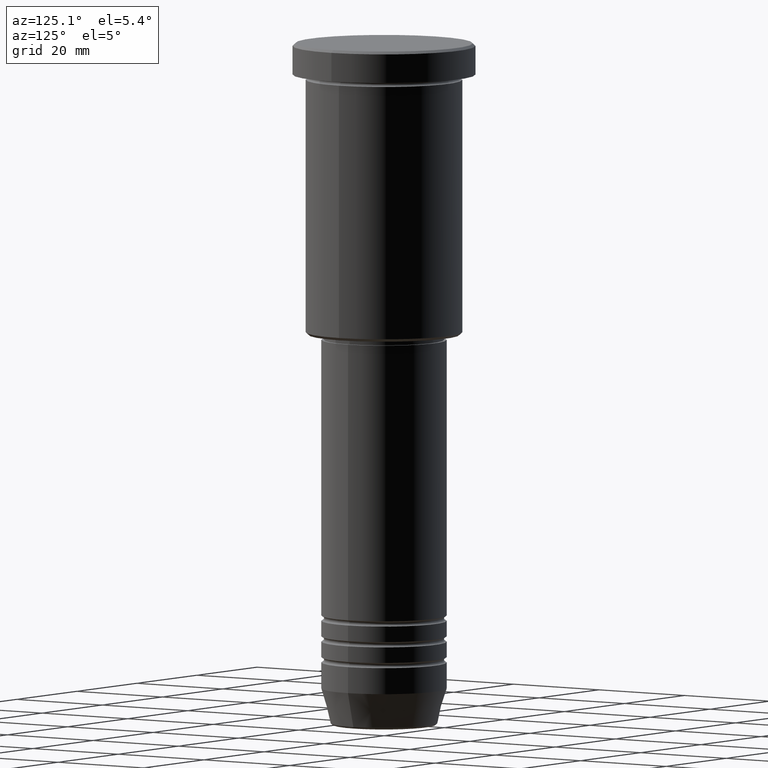
[diagram: clean part render]
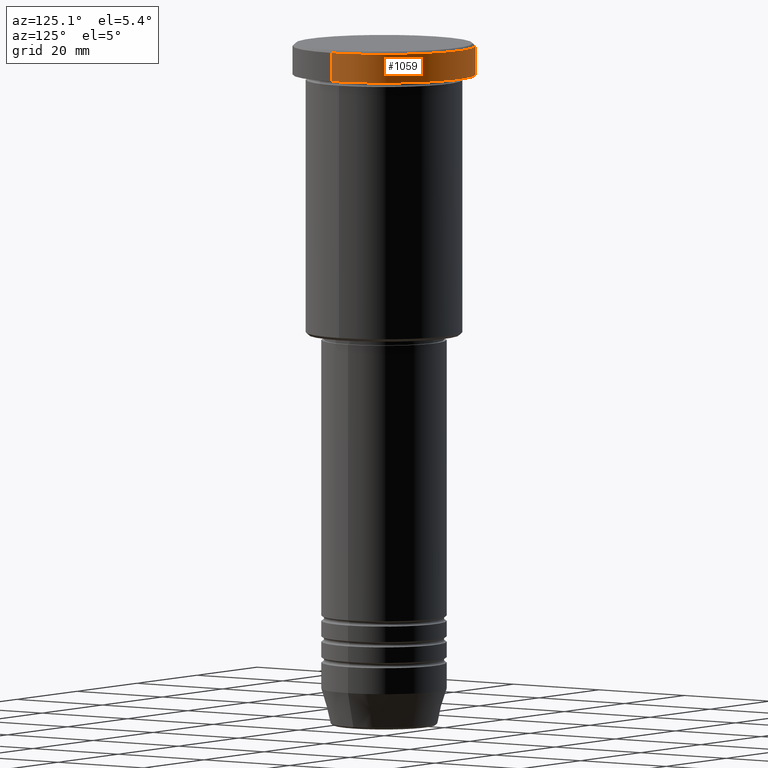
[diagram: same view with one face highlighted and labeled with its STEP entity id]
A machine part, auxiliary view. The second image highlights one B-rep face of the part: STEP entity #1059.
In plain terms, the highlighted cylindrical surface (partial cylindrical patch) has radius 17.5 mm, axis along (-0, -0, 1).
Its self-contained STEP definition (entity closure, byte-faithful):
#64 = FACE_OUTER_BOUND ( 'NONE', #793, .T. ) ;
#73 = ORIENTED_EDGE ( 'NONE', *, *, #806, .T. ) ;
#81 = CIRCLE ( 'NONE', #273, 17.50000000000000000 ) ;
#83 = VERTEX_POINT ( 'NONE', #197 ) ;
#90 = VERTEX_POINT ( 'NONE', #644 ) ;
#129 = ORIENTED_EDGE ( 'NONE', *, *, #939, .T. ) ;
#130 = DIRECTION ( 'NONE',  ( 0.000000000000000000, 0.000000000000000000, -1.000000000000000000 ) ) ;
#133 = DIRECTION ( 'NONE',  ( -0.000000000000000000, -0.000000000000000000, 1.000000000000000000 ) ) ;
#184 = VERTEX_POINT ( 'NONE', #600 ) ;
#197 = CARTESIAN_POINT ( 'NONE',  ( -17.50000000000000000, 2.143131898507868248E-15, -5.999999999999995559 ) ) ;
#208 = CARTESIAN_POINT ( 'NONE',  ( -17.50000000000000000, 2.143131898507868248E-15, -0.5000000000000003331 ) ) ;
#219 = EDGE_CURVE ( 'NONE', #83, #986, #1060, .T. ) ;
#273 = AXIS2_PLACEMENT_3D ( 'NONE', #675, #130, #1026 ) ;
#277 = CARTESIAN_POINT ( 'NONE',  ( 0.000000000000000000, 0.000000000000000000, -5.999999999999995559 ) ) ;
#290 = AXIS2_PLACEMENT_3D ( 'NONE', #416, #701, #684 ) ;
#354 = DIRECTION ( 'NONE',  ( -0.000000000000000000, -0.000000000000000000, 1.000000000000000000 ) ) ;
#360 = ORIENTED_EDGE ( 'NONE', *, *, #219, .T. ) ;
#367 = LINE ( 'NONE', #1005, #592 ) ;
#416 = CARTESIAN_POINT ( 'NONE',  ( 0.000000000000000000, 0.000000000000000000, 0.000000000000000000 ) ) ;
#536 = AXIS2_PLACEMENT_3D ( 'NONE', #277, #354, #557 ) ;
#557 = DIRECTION ( 'NONE',  ( 1.000000000000000000, 0.000000000000000000, 0.000000000000000000 ) ) ;
#592 = VECTOR ( 'NONE', #1171, 1000.000000000000000 ) ;
#593 = CARTESIAN_POINT ( 'NONE',  ( -17.50000000000000000, 2.143131898507868248E-15, 0.000000000000000000 ) ) ;
#600 = CARTESIAN_POINT ( 'NONE',  ( 17.50000000000000000, 0.000000000000000000, -5.999999999999995559 ) ) ;
#644 = CARTESIAN_POINT ( 'NONE',  ( 17.50000000000000000, 0.000000000000000000, -0.5000000000000003331 ) ) ;
#675 = CARTESIAN_POINT ( 'NONE',  ( 0.000000000000000000, 0.000000000000000000, -0.5000000000000003331 ) ) ;
#684 = DIRECTION ( 'NONE',  ( 1.000000000000000000, 0.000000000000000000, 0.000000000000000000 ) ) ;
#701 = DIRECTION ( 'NONE',  ( -0.000000000000000000, -0.000000000000000000, 1.000000000000000000 ) ) ;
#747 = EDGE_CURVE ( 'NONE', #184, #90, #367, .T. ) ;
#793 = EDGE_LOOP ( 'NONE', ( #73, #360, #129, #1046 ) ) ;
#806 = EDGE_CURVE ( 'NONE', #184, #83, #1150, .T. ) ;
#817 = VECTOR ( 'NONE', #133, 1000.000000000000000 ) ;
#939 = EDGE_CURVE ( 'NONE', #986, #90, #81, .T. ) ;
#977 = CYLINDRICAL_SURFACE ( 'NONE', #290, 17.50000000000000000 ) ;
#986 = VERTEX_POINT ( 'NONE', #208 ) ;
#1005 = CARTESIAN_POINT ( 'NONE',  ( 17.50000000000000000, 0.000000000000000000, 0.000000000000000000 ) ) ;
#1026 = DIRECTION ( 'NONE',  ( 1.000000000000000000, 0.000000000000000000, 0.000000000000000000 ) ) ;
#1046 = ORIENTED_EDGE ( 'NONE', *, *, #747, .F. ) ;
#1059 = ADVANCED_FACE ( 'NONE', ( #64 ), #977, .T. ) ;
#1060 = LINE ( 'NONE', #593, #817 ) ;
#1150 = CIRCLE ( 'NONE', #536, 17.50000000000000000 ) ;
#1171 = DIRECTION ( 'NONE',  ( -0.000000000000000000, -0.000000000000000000, 1.000000000000000000 ) ) ;